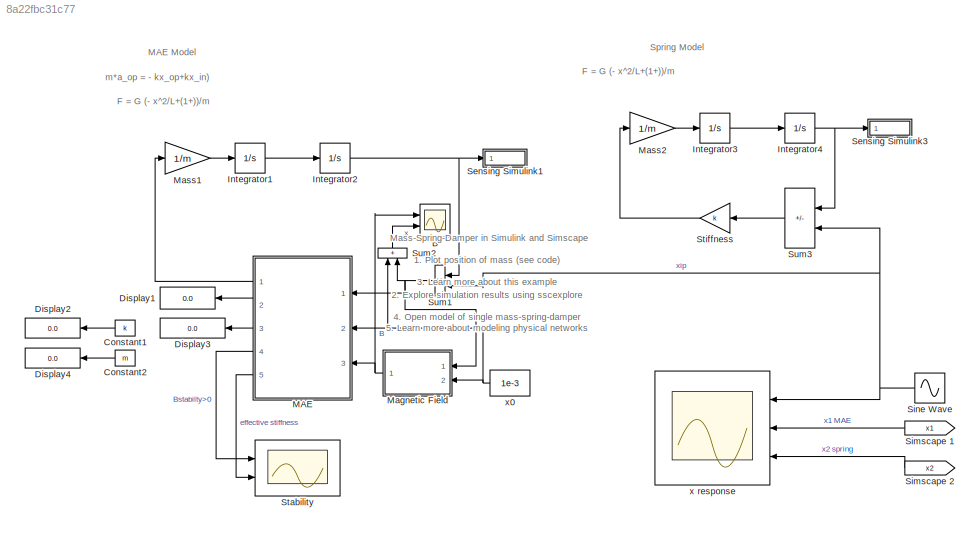
MODEL slx_8a22fbc31c77
KIND model
CONFIG AbsTol = 1e-3
CONFIG EnableMultiTasking = on
CONFIG FixedStep = auto
CONFIG MaxStep = 0.005
CONFIG MinStep = auto
CONFIG PostLoadFcn = m = 3.600;     % kg\nk = 400;    % N/m\nb = 10;      % Ns/m
CONFIG RelTol = 1e-3
CONFIG SampleTimeConstraint = Unconstrained
CONFIG SolverName = VariableStepAuto
CONFIG StartTime = 0.0
CONFIG StopTime = 10
BLOCK [Scope] B
  Floating = off
  NumInputPorts = 2
  Ports = [2]
  ScopeSpecificationString = Simulink.scopes.TimeScopeBlockCfg('CurrentConfiguration', extmgr.ConfigurationSet(extmgr.Configuration('Core','General UI',true),extmgr.Configuration('Core','Source UI',true),extmgr.Configuration('Sources','WiredSimulink',true,'DataLoggingVariableName','ScopeData1'),extmgr.Configuration('Visuals','Time Domain',true,'SerializedDisplays',{struct('MinYLimReal','-0.04669','MaxYLimReal','0.42218','YLab...<+2176ch>
BLOCK [Constant] Constant1
  NameLocation = top
  Value = k
BLOCK [Constant] Constant2
  NameLocation = top
  Value = m
BLOCK [Display] Display1
  Decimation = 1
  NameLocation = top
  Ports = [1]
BLOCK [Display] Display2
  Decimation = 1
  NameLocation = top
  Ports = [1]
BLOCK [Display] Display3
  Decimation = 1
  NameLocation = top
  Ports = [1]
BLOCK [Display] Display4
  Decimation = 1
  NameLocation = top
  Ports = [1]
BLOCK [Integrator] Integrator1
  Ports = [1, 1]
BLOCK [Integrator] Integrator2
  AttributesFormatString = x0 = %<InitialCondition> m
  Ports = [1, 1]
BLOCK [Integrator] Integrator3
  Ports = [1, 1]
BLOCK [Integrator] Integrator4
  AttributesFormatString = x0 = %<InitialCondition> m
  Ports = [1, 1]
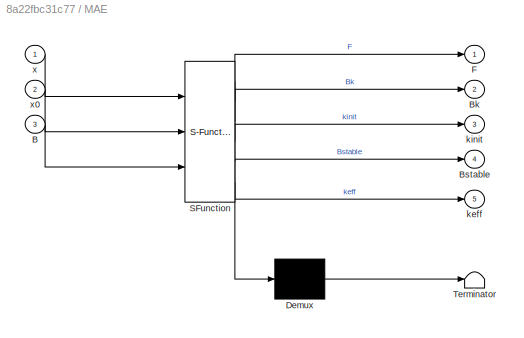
BLOCK [SubSystem] MAE
  ErrorFcn = Stateflow.Translate.translate
  PermitHierarchicalResolution = ExplicitOnly
  Ports = [3, 5]
  RequestExecContextInheritance = off
  SFBlockType = MATLAB Function
  TreatAsAtomicUnit = on
BLOCK [Demux] MAE/ Demux 
  Outputs = 1
  Ports = [1, 1]
BLOCK [S-Function] MAE/ SFunction 
  EnableBusSupport = on
  FunctionName = sf_sfun
  PortCounts = [3 6]
  Ports = [3, 6]
  SFcnIsStateOwnerBlock = off
  SFunctionDeploymentMode = off
  Tag = Stateflow S-Function 2
BLOCK [Terminator] MAE/ Terminator 
BLOCK [Inport] MAE/B
  Port = 3
BLOCK [Outport] MAE/Bk
  Port = 2
BLOCK [Outport] MAE/Bstable
  Port = 4
BLOCK [Outport] MAE/F
BLOCK [Outport] MAE/keff
  Port = 5
BLOCK [Outport] MAE/kinit
  Port = 3
BLOCK [Inport] MAE/x
BLOCK [Inport] MAE/x0
  Port = 2
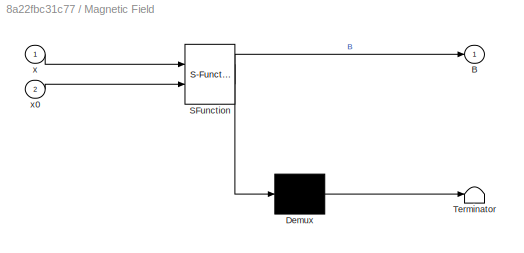
BLOCK [SubSystem] Magnetic Field
  ErrorFcn = Stateflow.Translate.translate
  PermitHierarchicalResolution = ExplicitOnly
  Ports = [2, 1]
  RequestExecContextInheritance = off
  SFBlockType = MATLAB Function
  TreatAsAtomicUnit = on
BLOCK [Demux] Magnetic Field/ Demux 
  Outputs = 1
  Ports = [1, 1]
BLOCK [S-Function] Magnetic Field/ SFunction 
  EnableBusSupport = on
  FunctionName = sf_sfun
  PortCounts = [2 2]
  Ports = [2, 2]
  SFcnIsStateOwnerBlock = off
  SFunctionDeploymentMode = off
  Tag = Stateflow S-Function 1
BLOCK [Terminator] Magnetic Field/ Terminator 
BLOCK [Outport] Magnetic Field/B
BLOCK [Inport] Magnetic Field/x
BLOCK [Inport] Magnetic Field/x0
  Port = 2
BLOCK [Gain] Mass1
  Gain = 1/m
  OutDataTypeStr = Inherit: Same as input
  ParamDataTypeStr = Inherit: Same as input
  SaturateOnIntegerOverflow = on
BLOCK [Gain] Mass2
  Gain = 1/m
  OutDataTypeStr = Inherit: Same as input
  ParamDataTypeStr = Inherit: Same as input
  SaturateOnIntegerOverflow = on
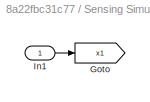
BLOCK [SubSystem] Sensing Simulink1
  NameLocation = top
  Ports = [1]
  RequestExecContextInheritance = off
BLOCK [Goto] Sensing Simulink1/Goto
  GotoTag = x1
  TagVisibility = global
BLOCK [Inport] Sensing Simulink1/In1
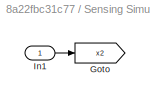
BLOCK [SubSystem] Sensing Simulink3
  NameLocation = top
  Ports = [1]
  RequestExecContextInheritance = off
BLOCK [Goto] Sensing Simulink3/Goto
  GotoTag = x2
  TagVisibility = global
BLOCK [Inport] Sensing Simulink3/In1
BLOCK [From] Simscape 1
  GotoTag = x1
  NameLocation = top
  TagVisibility = global
BLOCK [From] Simscape 2
  GotoTag = x2
  NameLocation = top
  TagVisibility = global
BLOCK [Sin] Sine Wave
  Amplitude = 1e-3
  Frequency = 2
  Ports = [0, 1]
  SampleTime = 0
BLOCK [Scope] Stability
  Floating = off
  NumInputPorts = 2
  Ports = [2]
  ScopeSpecificationString = Simulink.scopes.TimeScopeBlockCfg('CurrentConfiguration', extmgr.ConfigurationSet(extmgr.Configuration('Core','General UI',true),extmgr.Configuration('Core','Source UI',true),extmgr.Configuration('Sources','WiredSimulink',true,'DataLoggingVariableName','ScopeData1'),extmgr.Configuration('Visuals','Time Domain',true,'SerializedDisplays',{struct('MinYLimReal','0.15581','MaxYLimReal','0.39731','YLabe...<+2191ch>
BLOCK [Gain] Stiffness
  Gain = k
  OutDataTypeStr = Inherit: Same as input
  ParamDataTypeStr = Inherit: Same as input
  SaturateOnIntegerOverflow = on
BLOCK [Sum] Sum1
  IconShape = rectangular
  InputSameDT = on
  Inputs = -+
  OutDataTypeStr = Inherit: Same as first input
  Ports = [2, 1]
  SaturateOnIntegerOverflow = on
BLOCK [Sum] Sum2
  IconShape = rectangular
  InputSameDT = on
  NameLocation = left
  OutDataTypeStr = Inherit: Same as first input
  Ports = [2, 1]
  SaturateOnIntegerOverflow = on
BLOCK [Sum] Sum3
  IconShape = rectangular
  InputSameDT = on
  Inputs = -+
  OutDataTypeStr = Inherit: Same as first input
  Ports = [2, 1]
  SaturateOnIntegerOverflow = on
BLOCK [Scope] x response
  Floating = off
  NameLocation = left
  NumInputPorts = 3
  Ports = [3]
  ScopeSpecificationString = Simulink.scopes.TimeScopeBlockCfg('CurrentConfiguration', extmgr.ConfigurationSet(extmgr.Configuration('Core','General UI',true,'FigureColor',[0.501960784313725 0.501960784313725 0.501960784313725]),extmgr.Configuration('Core','Source UI',true),extmgr.Configuration('Sources','WiredSimulink',true,'DataLoggingSaveFormat','Array','DataLoggingLimitDataPoints',true,'DataLoggingDecimation','1'),extmgr.C...<+1988ch>
BLOCK [Constant] x0
  Value = 1e-3
ANNOTATION (root): F = G (- x^2/L+(1+))/m
ANNOTATION (root): m*a_op = - kx_op+kx_in)
ANNOTATION (root): MAE Model
ANNOTATION (root): Spring Model
ANNOTATION (root): 1. Plot position of mass ( see code ) 2. Explore simulation results using sscexplore 3. Learn more about this example 4. Open model of single mass-spring-damper 5. Learn more about modeling physical networks
ANNOTATION (root): Mass-Spring-Damper in Simulink and Simscape
LINE Constant1:1 -> Display2:1
LINE Constant2:1 -> Display4:1
LINE Integrator1:1 -> Integrator2:1
NET Integrator2:1 -> Sensing Simulink1:1, Sum1:1
LINE Integrator3:1 -> Integrator4:1
NET Integrator4:1 -> Sensing Simulink3:1, Sum3:1
LINE MAE:1 -> Mass1:1
LINE MAE:2 -> Display1:1
LINE MAE:3 -> Display3:1
LINE MAE:4 -> Stability:1
LINE MAE:5 -> Stability:2
NET Magnetic Field:1 -> B:1, MAE:3
LINE Mass1:1 -> Integrator1:1
LINE Mass2:1 -> Integrator3:1
LINE Sensing Simulink1/In1:1 -> Sensing Simulink1/Goto:1
LINE Sensing Simulink3/In1:1 -> Sensing Simulink3/Goto:1
LINE Simscape 1:1 -> x response:2
LINE Simscape 2:1 -> x response:3
NET Sine Wave:1 -> Sum1:2, Sum3:2, x response:1
LINE Stiffness:1 -> Mass2:1
NET Sum1:1 -> MAE:1, Magnetic Field:1, Sum2:2
LINE Sum2:1 -> B:2
LINE Sum3:1 -> Stiffness:1
NET x0:1 -> MAE:2, Magnetic Field:2, Sum2:1
note: NET lines group one-source signal fan-out (src -> all destinations, sorted); 1:1 wires keep LINE
CHART Magnetic Field states=1 transitions=1
  STATE_LABEL 'eML_blk_kernel()'
  STATE_LABEL 'SCRIPT:\nfunction B = BInp(x,x0)\nG1 = 50*1e3;    c1 = 0.9;       mu1 = 1;                                \nG2 = 500*1e3;   c2 = 0.1;       mu2 = 10;                               \n\nmu0 = 1.25663706 * 1e-6;        L0 = 0.01;\nGbar = G1*c1 + G2*c2;           mubar = mu0*(mu1*c1 + mu2*c2);   \nGcap = 1/(c1/G1 + c2/G2);       mucap = mu0/(c1/mu1 + c2/mu2);\n\n% A = L0*L0;\n\nld = 1 + (x+x0)/L0;               ...<+212ch>'
CHART MAE states=1 transitions=1
  STATE_LABEL 'eML_blk_kernel()'
  STATE_LABEL 'SCRIPT:\nfunction [F,Bk,kinit,Bstable,keff] = MAE(x,x0,B)\n\nG1 = 50*1e3;    c1 = 0.9;       mu1 = 1;                                \nG2 = 500*1e3;   c2 = 0.1;       mu2 = 10;                               \n\nmu0 = 1.25663706 * 1e-6;        L0 = 0.01;\nGbar = G1*c1 + G2*c2;           mubar = mu0*(mu1*c1 + mu2*c2);   \nGcap = 1/(c1/G1 + c2/G2);       mucap = mu0/(c1/mu1 + c2/mu2);\n\nA = L0*L0;\n\n\nld = 1 + ...<+234ch>'
CHART  states=0 transitions=0
CHART  states=0 transitions=0
